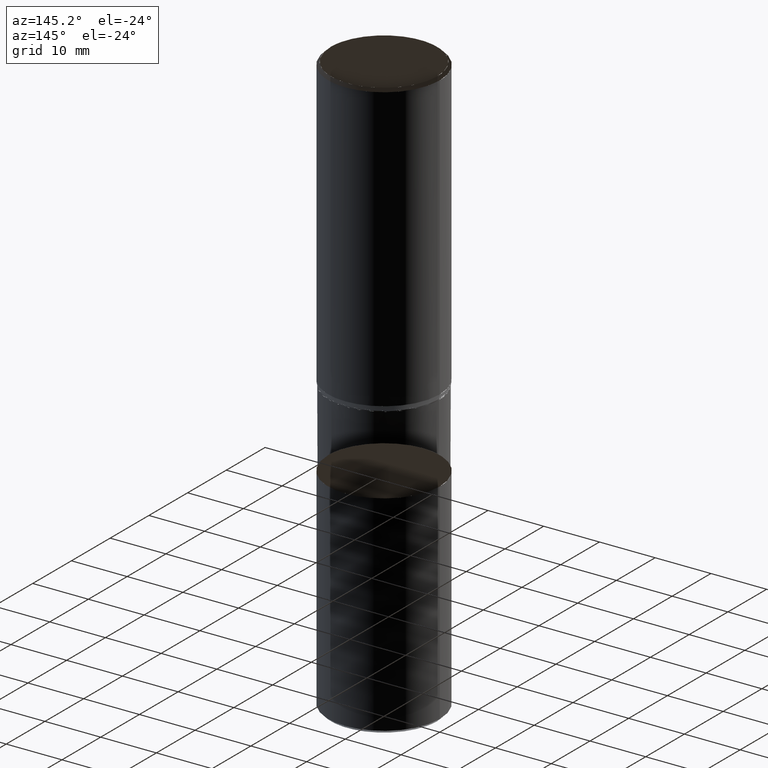
[diagram: clean part render]
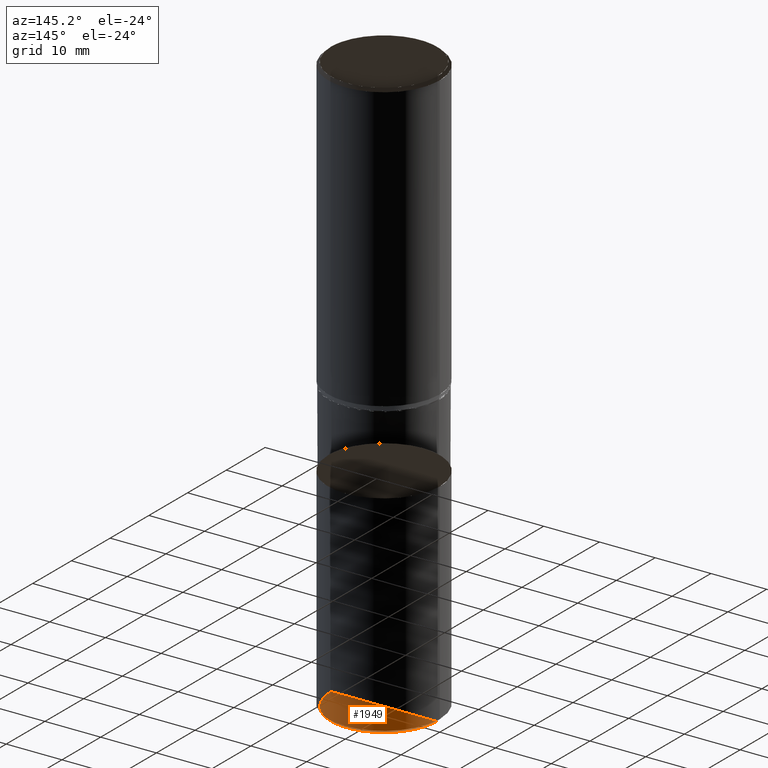
[diagram: same view with one face highlighted and labeled with its STEP entity id]
A machine part, auxiliary view. The second image highlights one B-rep face of the part: STEP entity #1949.
In plain terms, the highlighted face is a freeform B-spline surface patch.
Its self-contained STEP definition (entity closure, byte-faithful):
#1772=CARTESIAN_POINT('',(0.0,0.0,-52.850692272943));
#1773=CARTESIAN_POINT('',(9.5,0.0,-52.850692272943));
#1777=CARTESIAN_POINT('',(-9.5,0.0,-52.850692272943));
#1789=CARTESIAN_POINT('',(-9.5,-9.5,-52.850692272943));
#1790=CARTESIAN_POINT('',(0.0,-9.5,-52.850692272943));
#1791=CARTESIAN_POINT('',(9.5,-9.5,-52.850692272943));
#1934=(
BOUNDED_SURFACE()
B_SPLINE_SURFACE(1,2,(
(#1772,#1772,#1772,#1772,#1772),
(#1777,#1789,#1790,#1791,#1773)
), .UNSPECIFIED.,.F.,.F.,.F.)
B_SPLINE_SURFACE_WITH_KNOTS((2,2),(3,2,3),(
0.0,1.0),(
0.0,0.5,1.0), .UNSPECIFIED.)
GEOMETRIC_REPRESENTATION_ITEM()
RATIONAL_B_SPLINE_SURFACE(((1.0,0.707106781187,1.0,0.707106781187,1.0),
(1.0,0.707106781187,1.0,0.707106781187,1.0)
))
REPRESENTATION_ITEM('')
SURFACE()
);
#1935=(
BOUNDED_CURVE()
B_SPLINE_CURVE(1,(#1773,#1772),.UNSPECIFIED.,.F.,.F.)
B_SPLINE_CURVE_WITH_KNOTS((2,2),
(0.0,1.0),.UNSPECIFIED.)
CURVE()
GEOMETRIC_REPRESENTATION_ITEM()
RATIONAL_B_SPLINE_CURVE((1.0,1.0))
REPRESENTATION_ITEM('')
);
#1936=(
BOUNDED_CURVE()
B_SPLINE_CURVE(1,(#1772,#1777),.UNSPECIFIED.,.F.,.F.)
B_SPLINE_CURVE_WITH_KNOTS((2,2),
(0.0,1.0),.UNSPECIFIED.)
CURVE()
GEOMETRIC_REPRESENTATION_ITEM()
RATIONAL_B_SPLINE_CURVE((1.0,1.0))
REPRESENTATION_ITEM('')
);
#1937=(
BOUNDED_CURVE()
B_SPLINE_CURVE(2,(#1777,#1789,#1790,#1791,#1773),.UNSPECIFIED.,.F.,.F.)
B_SPLINE_CURVE_WITH_KNOTS((3,2,3),
(0.0,0.5,1.0),.UNSPECIFIED.)
CURVE()
GEOMETRIC_REPRESENTATION_ITEM()
RATIONAL_B_SPLINE_CURVE((1.0,0.707106781187,1.0,0.707106781187,1.0))
REPRESENTATION_ITEM('')
);
#1938=VERTEX_POINT('',#1772);
#1939=VERTEX_POINT('',#1773);
#1940=VERTEX_POINT('',#1777);
#1941=EDGE_CURVE('',#1939,#1938,#1935,.T.);
#1942=EDGE_CURVE('',#1938,#1940,#1936,.T.);
#1943=EDGE_CURVE('',#1940,#1939,#1937,.T.);
#1944=ORIENTED_EDGE('',*,*,#1941,.T.);
#1945=ORIENTED_EDGE('',*,*,#1942,.T.);
#1946=ORIENTED_EDGE('',*,*,#1943,.T.);
#1947=EDGE_LOOP('',(#1944,#1945,#1946));
#1948=FACE_OUTER_BOUND('',#1947,.T.);
#1949=ADVANCED_FACE('',(#1948),#1934,.T.);